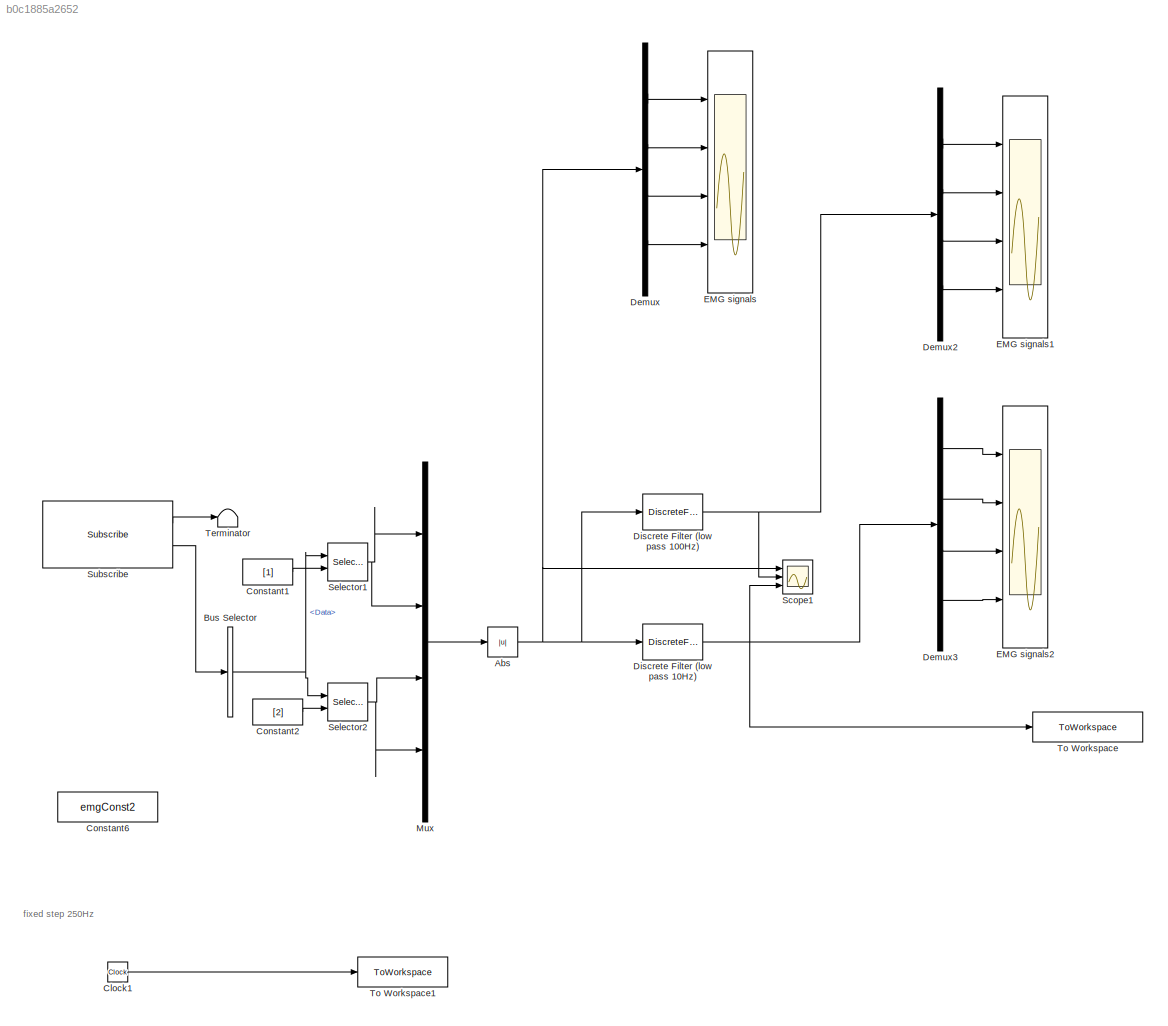
MODEL slx_b0c1885a2652
KIND model
CONFIG AbsTol = auto
CONFIG EnableMultiTasking = on
CONFIG FixedStep = Ts_sim
CONFIG MaxStep = auto
CONFIG MinStep = auto
CONFIG RelTol = 1e-3
CONFIG SampleTimeConstraint = Unconstrained
CONFIG Solver = ode5
CONFIG SolverName = ode5
CONFIG StartTime = 0.0
CONFIG StopTime = 10
BLOCK [Abs] Abs
  SaturateOnIntegerOverflow = off
BLOCK [BusSelector] Bus Selector
  OutputAsBus = off
  OutputSignals = Data
  Ports = [1, 1]
BLOCK [Clock] Clock1
BLOCK [Constant] Constant1
  Value = [1]
BLOCK [Constant] Constant2
  Value = [2]
BLOCK [Constant] Constant6
  OutDataTypeStr = int16
  Value = emgConst2
  VectorParams1D = off
BLOCK [Demux] Demux
  DisplayOption = bar
  Ports = [1, 4]
BLOCK [Demux] Demux2
  DisplayOption = bar
  Ports = [1, 4]
BLOCK [Demux] Demux3
  DisplayOption = bar
  Ports = [1, 4]
BLOCK [DiscreteFilter] Discrete Filter (low pass 100Hz)
  Denominator = A_butter_low
  InputPortMap = u0
  Numerator = B_butter_low
  Ports = [1, 1]
BLOCK [DiscreteFilter] Discrete Filter (low pass 10Hz)
  Denominator = A_butter_cal
  InputPortMap = u0
  Numerator = B_butter_cal
  Ports = [1, 1]
BLOCK [Scope] EMG signals
  NumInputPorts = 4
  Ports = [4]
  ScopeSpecificationString = Simulink.scopes.TimeScopeBlockCfg('CurrentConfiguration', extmgr.ConfigurationSet(extmgr.Configuration('Core','General UI',true),extmgr.Configuration('Core','Source UI',true),extmgr.Configuration('Sources','WiredSimulink',true,'DataLoggingVariableName','ScopeData2','DataLoggingSaveFormat','Array','DataLoggingDecimation','1','DataLoggingDecimateData',true),extmgr.Configuration('Visuals','Time Domai...<+3719ch>
BLOCK [Scope] EMG signals1
  NumInputPorts = 4
  Ports = [4]
  ScopeSpecificationString = C++SS(StrPVP('Location','[10, 425, 1294, 1100]'),StrPVP('Open','off'),MxPVP('AxesTitles',53,'struct(''axes1'',''%<SignalLabel>'',''axes2'',''%<SignalLabel>'',''axes3'',''%<SignalLabel>'',''axes4'',''%<SignalLabel>'')'),MxPVP('ScopeGraphics',56,'struct(''FigureColor'',''[0.501960784313725 0.501960784313725 0.501960784313725]'',''AxesColor'',''[0 0 0]'',''AxesTickColor'',''[1 1 1]'',''LineColors'','...<+432ch>
BLOCK [Scope] EMG signals2
  NumInputPorts = 4
  Ports = [4]
  ScopeSpecificationString = C++SS(StrPVP('Location','[10, 425, 1294, 1100]'),StrPVP('Open','off'),MxPVP('AxesTitles',53,'struct(''axes1'',''%<SignalLabel>'',''axes2'',''%<SignalLabel>'',''axes3'',''%<SignalLabel>'',''axes4'',''%<SignalLabel>'')'),MxPVP('ScopeGraphics',56,'struct(''FigureColor'',''[0.501960784313725 0.501960784313725 0.501960784313725]'',''AxesColor'',''[0 0 0]'',''AxesTickColor'',''[1 1 1]'',''LineColors'','...<+445ch>
BLOCK [Mux] Mux
  DisplayOption = bar
  Ports = [4, 1]
BLOCK [Scope] Scope1
  NumInputPorts = 3
  Ports = [3]
  ScopeSpecificationString = Simulink.scopes.TimeScopeBlockCfg('CurrentConfiguration', extmgr.ConfigurationSet(extmgr.Configuration('Core','General UI',true),extmgr.Configuration('Core','Source UI',true),extmgr.Configuration('Sources','WiredSimulink',true,'DataLoggingVariableName','ScopeData1'),extmgr.Configuration('Visuals','Time Domain',true,'SerializedDisplays',{struct('MinYLimReal','-472.65293','MaxYLimReal','1838.07255',...<+1728ch>
BLOCK [Selector] Selector1
  IndexOptions = Index vector (port)
  Indices = [1 3]
  OutputSizes = 1
  Ports = [2, 1]
BLOCK [Selector] Selector2
  IndexOptions = Index vector (port)
  Indices = [1 3]
  OutputSizes = 1
  Ports = [2, 1]
BLOCK [Reference] Subscribe  REF=robotlib/Subscribe
  Ports = [0, 2]
  SourceBlock = robotlib/Subscribe
  SourceLibraryInfo = This block requires Robotics System Toolbox
  SourceProductBaseCode = RO
  SourceProductName = Robotics System Toolbox
  SourceType = ROS Subscribe
BLOCK [Terminator] Terminator
BLOCK [ToWorkspace] To Workspace
  FixptAsFi = on
  MaxDataPoints = inf
  Ports = [1]
  SampleTime = -1
  Save2DSignal = 3-D array (concatenate along third dimension)
  VariableName = EMG_vect_calRT
BLOCK [ToWorkspace] To Workspace1
  FixptAsFi = on
  MaxDataPoints = inf
  Ports = [1]
  SampleTime = -1
  Save2DSignal = 3-D array (concatenate along third dimension)
  VariableName = time_calRT
ANNOTATION (root): fixed step 250Hz
NET Abs:1 -> Demux:1, Discrete Filter (low pass 100Hz):1, Discrete Filter (low pass 10Hz):1, Scope1:1
NET Bus Selector:1 -> Selector1:1, Selector2:1
LINE Clock1:1 -> To Workspace1:1
LINE Constant1:1 -> Selector1:2
LINE Constant2:1 -> Selector2:2
LINE Demux2:1 -> EMG signals1:1
LINE Demux2:2 -> EMG signals1:2
LINE Demux2:3 -> EMG signals1:3
LINE Demux2:4 -> EMG signals1:4
LINE Demux3:1 -> EMG signals2:1
LINE Demux3:2 -> EMG signals2:2
LINE Demux3:3 -> EMG signals2:3
LINE Demux3:4 -> EMG signals2:4
LINE Demux:1 -> EMG signals:1
LINE Demux:2 -> EMG signals:2
LINE Demux:3 -> EMG signals:3
LINE Demux:4 -> EMG signals:4
NET Discrete Filter (low pass 100Hz):1 -> Demux2:1, Scope1:2
NET Discrete Filter (low pass 10Hz):1 -> Demux3:1, Scope1:3, To Workspace:1
LINE Mux:1 -> Abs:1
NET Selector1:1 -> Mux:1, Mux:2
NET Selector2:1 -> Mux:3, Mux:4
LINE Subscribe:1 -> Terminator:1
LINE Subscribe:2 -> Bus Selector:1
note: NET lines group one-source signal fan-out (src -> all destinations, sorted); 1:1 wires keep LINE
